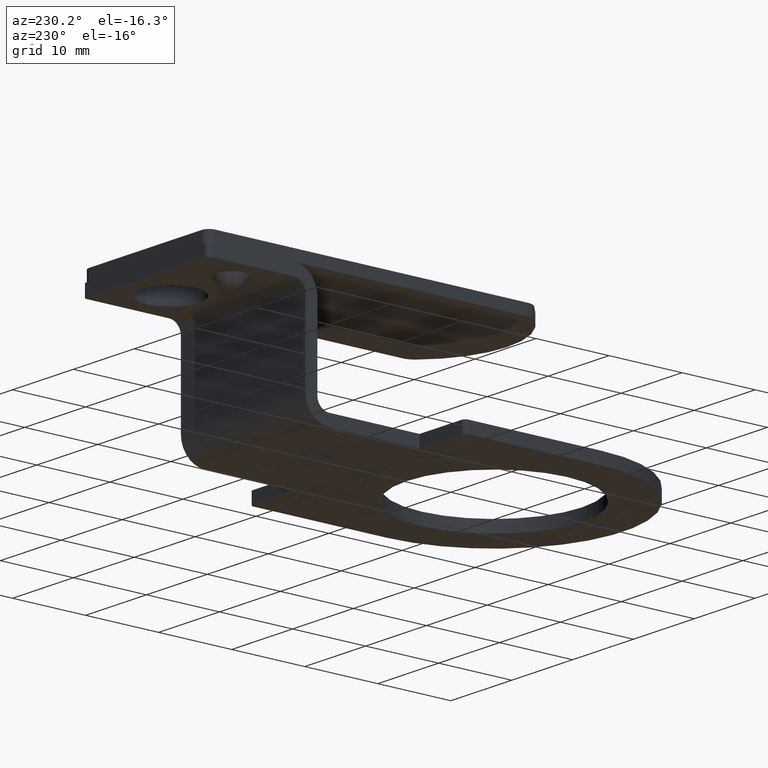
[diagram: clean part render]
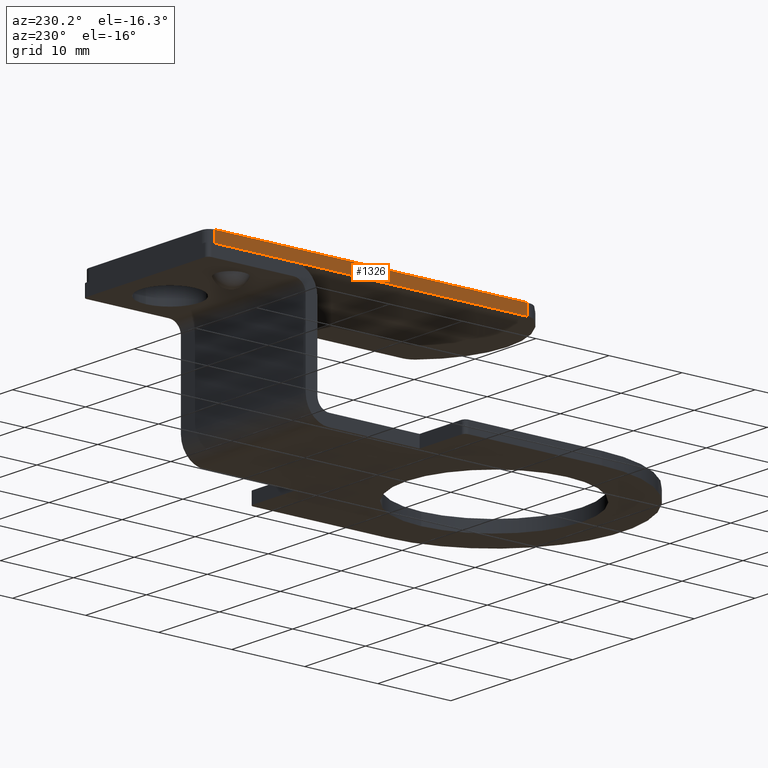
[diagram: same view with one face highlighted and labeled with its STEP entity id]
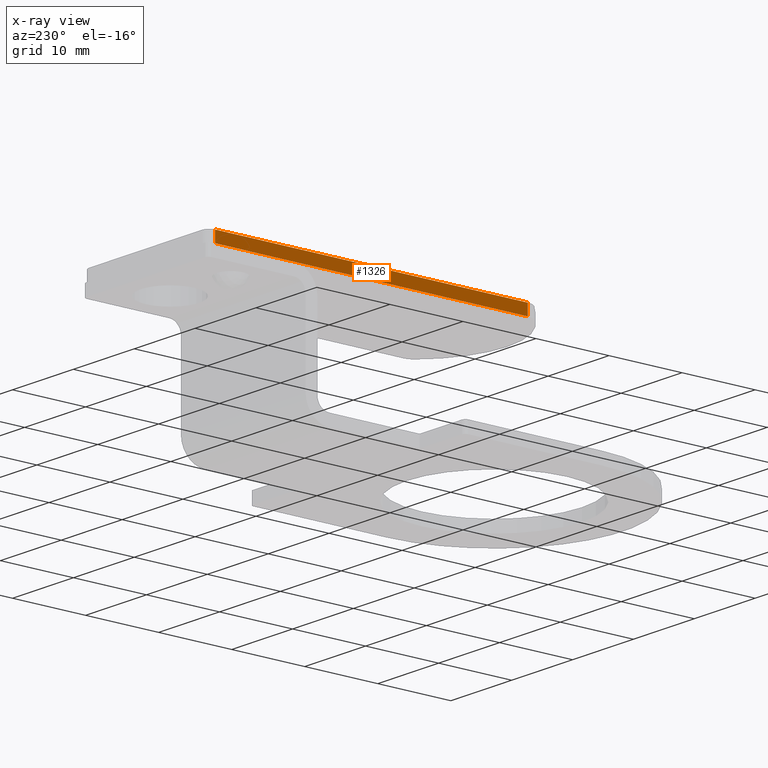
[diagram: x-ray of the same camera — body ghosted, the highlighted face saturated]
A machine part, auxiliary view. The second image highlights one B-rep face of the part: STEP entity #1326.
The next image is the same camera in x-ray: the body ghosted, the highlighted face saturated — about 0% of this face is hidden behind the body in this view.
In plain terms, the highlighted planar face has unit normal (-1, 0, 0).
Its self-contained STEP definition (entity closure, byte-faithful):
#1096=CARTESIAN_POINT('',(-2.909462995057528,-27.580221914638571,0.0));
#1097=VERTEX_POINT('',#1096);
#1105=CARTESIAN_POINT('',(-2.909462995057537,15.195594190789063,0.0));
#1106=VERTEX_POINT('',#1105);
#1107=CARTESIAN_POINT('',(-2.909462995057528,-27.580221914638571,0.0));
#1108=DIRECTION('',(0.0,1.0,0.0));
#1109=VECTOR('',#1108,42.775816105427637);
#1110=LINE('',#1107,#1109);
#1111=EDGE_CURVE('',#1097,#1106,#1110,.T.);
#1151=CARTESIAN_POINT('',(-2.909462995057537,15.195594190789063,1.500000000000000));
#1152=VERTEX_POINT('',#1151);
#1162=CARTESIAN_POINT('',(-2.909462995057537,15.195594190789063,0.0));
#1163=DIRECTION('',(0.0,0.0,1.0));
#1164=VECTOR('',#1163,1.500000000000000);
#1165=LINE('',#1162,#1164);
#1166=EDGE_CURVE('',#1106,#1152,#1165,.T.);
#1290=CARTESIAN_POINT('',(-2.909462995057528,-27.580221914638571,1.500000000000000));
#1291=VERTEX_POINT('',#1290);
#1299=CARTESIAN_POINT('',(-2.909462995057528,-27.580221914638571,0.0));
#1300=DIRECTION('',(0.0,0.0,1.0));
#1301=VECTOR('',#1300,1.500000000000000);
#1302=LINE('',#1299,#1301);
#1303=EDGE_CURVE('',#1097,#1291,#1302,.T.);
#1310=CARTESIAN_POINT('',(-2.909462995057528,-27.580221914638571,0.0));
#1311=DIRECTION('',(-1.0,0.0,0.0));
#1312=DIRECTION('',(0.0,0.0,1.0));
#1313=AXIS2_PLACEMENT_3D('',#1310,#1311,#1312);
#1314=PLANE('',#1313);
#1315=ORIENTED_EDGE('',*,*,#1166,.F.);
#1316=ORIENTED_EDGE('',*,*,#1111,.F.);
#1317=ORIENTED_EDGE('',*,*,#1303,.T.);
#1318=CARTESIAN_POINT('',(-2.909462995057528,-27.580221914638571,1.500000000000000));
#1319=DIRECTION('',(0.0,1.0,0.0));
#1320=VECTOR('',#1319,42.775816105427637);
#1321=LINE('',#1318,#1320);
#1322=EDGE_CURVE('',#1291,#1152,#1321,.T.);
#1323=ORIENTED_EDGE('',*,*,#1322,.T.);
#1324=EDGE_LOOP('',(#1315,#1316,#1317,#1323));
#1325=FACE_OUTER_BOUND('',#1324,.T.);
#1326=ADVANCED_FACE('',(#1325),#1314,.T.);